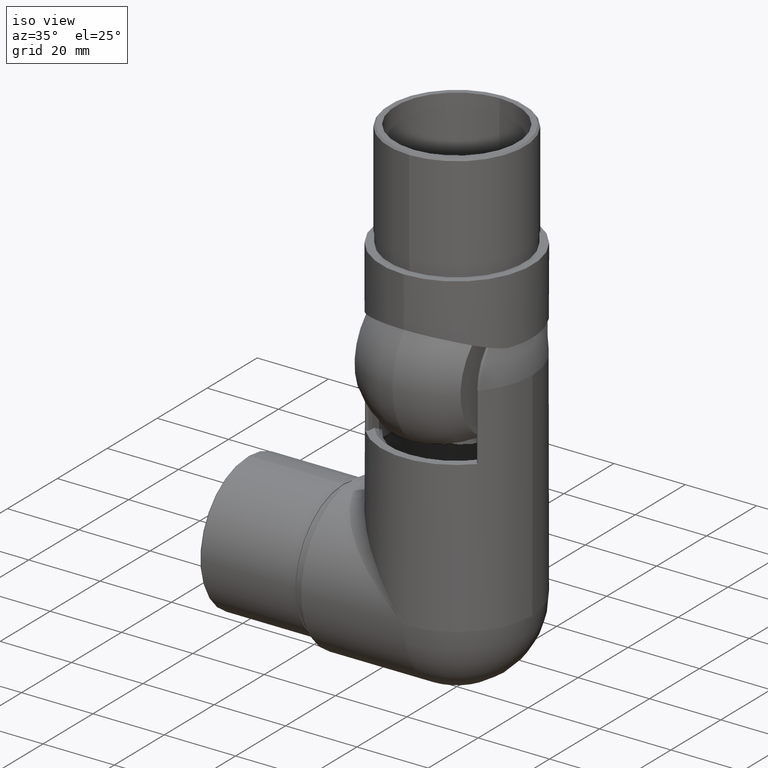
[diagram: clean part render]
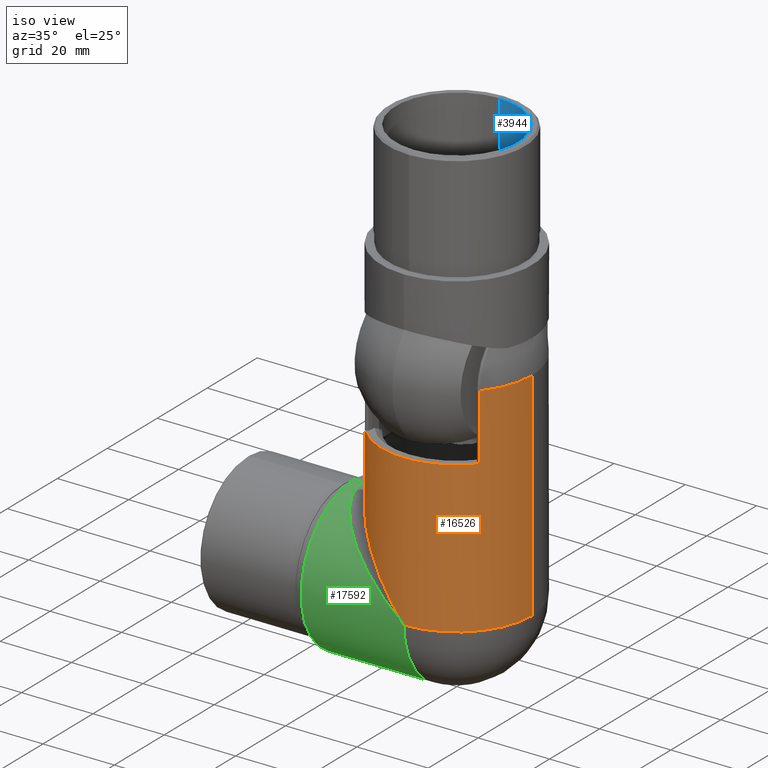
[diagram: same view with three faces highlighted in distinct colors, each labeled with its STEP entity id]
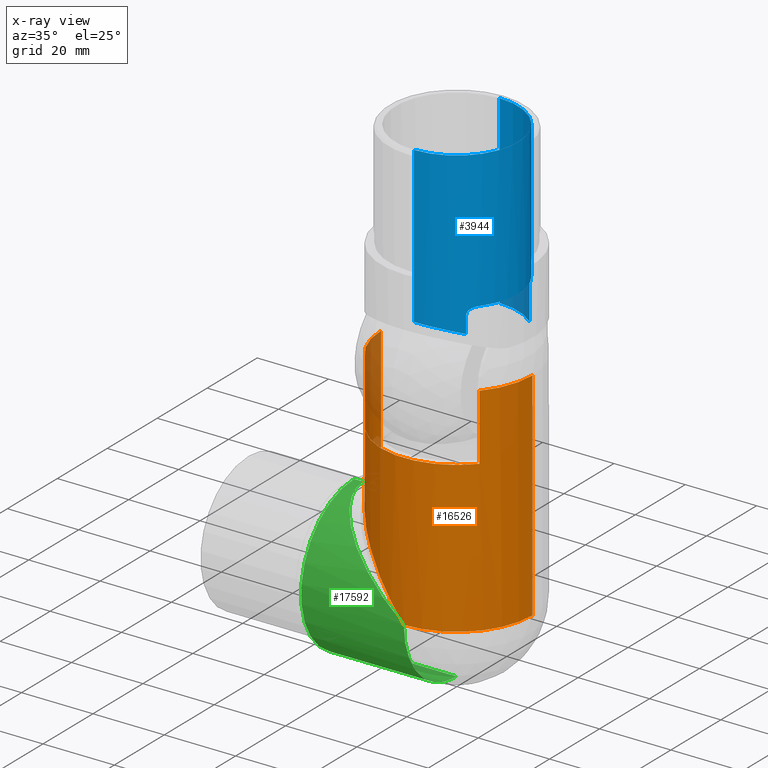
[diagram: x-ray of the same camera — body ghosted, the three highlighted faces saturated]
A machine part, iso view with three faces highlighted in distinct colors.
The next image is the same camera in x-ray (body ghosted, the three faces saturated) — at least one of them is partly hidden behind the body in this view.
Their STEP definitions:

[orange] entity #16526 — the highlighted cylindrical surface (partial cylindrical patch) has radius 21.2 mm, axis along (0, 0, -1).
#15 = CARTESIAN_POINT ( 'NONE',  ( 16.05596077515906828, -13.84363115611482442, 60.80000000000005400 ) ) ;
#73 = DIRECTION ( 'NONE',  ( 3.491481338843133355E-15, 0.000000000000000000, -1.000000000000000000 ) ) ;
#186 = CARTESIAN_POINT ( 'NONE',  ( 16.05596077515907538, -13.84363115611482975, 42.30000000000000426 ) ) ;
#228 = ORIENTED_EDGE ( 'NONE', *, *, #21409, .T. ) ;
#387 = EDGE_LOOP ( 'NONE', ( #22101, #2520, #17065, #15325, #7962, #18057, #228, #8061, #21703 ) ) ;
#399 = CARTESIAN_POINT ( 'NONE',  ( -12.41867247769038585, -21.19999999999999218, 15.34760466582491212 ) ) ;
#1328 = CYLINDRICAL_SURFACE ( 'NONE', #13012, 21.19999999999999929 ) ;
#1904 = VECTOR ( 'NONE', #6328, 1000.000000000000000 ) ;
#1930 = CARTESIAN_POINT ( 'NONE',  ( 21.19999999999999218, 2.596251214192388375E-15, 60.80000000000007532 ) ) ;
#1986 = CARTESIAN_POINT ( 'NONE',  ( 16.05596077515907538, -13.84363115611482975, 51.29999999999999716 ) ) ;
#2443 = LINE ( 'NONE', #6258, #1904 ) ;
#2520 = ORIENTED_EDGE ( 'NONE', *, *, #9721, .T. ) ;
#2555 = CIRCLE ( 'NONE', #19419, 21.19999999999999929 ) ;
#3300 = CARTESIAN_POINT ( 'NONE',  ( 0.000000000000000000, 0.000000000000000000, 42.30000000000000426 ) ) ;
#3507 = AXIS2_PLACEMENT_3D ( 'NONE', #16790, #13229, #4563 ) ;
#4563 = DIRECTION ( 'NONE',  ( 1.000000000000000000, 0.000000000000000000, 3.600369478442430295E-15 ) ) ;
#4929 = AXIS2_PLACEMENT_3D ( 'NONE', #18751, #15406, #10201 ) ;
#5185 =( BOUNDED_CURVE ( )  B_SPLINE_CURVE ( 3, ( #6122, #18056, #399, #19200 ),
 .UNSPECIFIED., .F., .T. ) 
 B_SPLINE_CURVE_WITH_KNOTS ( ( 4, 4 ),
 ( 3.141592653589793116, 4.712388980384689674 ),
 .UNSPECIFIED. ) 
 CURVE ( )  GEOMETRIC_REPRESENTATION_ITEM ( )  RATIONAL_B_SPLINE_CURVE ( ( 1.000000000000000000, 0.8047378541243649375, 0.8047378541243649375, 1.000000000000000000 ) ) 
 REPRESENTATION_ITEM ( '' )  );
#5201 = EDGE_CURVE ( 'NONE', #20519, #10269, #10367, .T. ) ;
#5623 = VERTEX_POINT ( 'NONE', #8094 ) ;
#5645 = EDGE_CURVE ( 'NONE', #9509, #6820, #7201, .T. ) ;
#5779 = EDGE_CURVE ( 'NONE', #9643, #15907, #21373, .T. ) ;
#6122 = CARTESIAN_POINT ( 'NONE',  ( -21.19999999999999929, 0.000000000000000000, 26.19999999999999929 ) ) ;
#6258 = CARTESIAN_POINT ( 'NONE',  ( -16.05596077515907538, -13.84363115611482975, 51.29999999999999716 ) ) ;
#6328 = DIRECTION ( 'NONE',  ( -0.000000000000000000, -0.000000000000000000, 1.000000000000000000 ) ) ;
#6820 = VERTEX_POINT ( 'NONE', #11552 ) ;
#7068 = DIRECTION ( 'NONE',  ( 0.000000000000000000, 0.000000000000000000, -1.000000000000000000 ) ) ;
#7201 = CIRCLE ( 'NONE', #3507, 21.19999999999999929 ) ;
#7962 = ORIENTED_EDGE ( 'NONE', *, *, #19383, .T. ) ;
#8052 = DIRECTION ( 'NONE',  ( -0.000000000000000000, -0.000000000000000000, 1.000000000000000000 ) ) ;
#8061 = ORIENTED_EDGE ( 'NONE', *, *, #9672, .T. ) ;
#8094 = CARTESIAN_POINT ( 'NONE',  ( -3.894376821288582760E-15, -21.19999999999999929, -1.359714399795232588E-29 ) ) ;
#8115 = CARTESIAN_POINT ( 'NONE',  ( -16.05596077515907538, -13.84363115611482975, 42.30000000000000426 ) ) ;
#8442 = CARTESIAN_POINT ( 'NONE',  ( -21.19999999999999929, 0.000000000000000000, 51.29999999999999716 ) ) ;
#8743 = DIRECTION ( 'NONE',  ( 1.000000000000000000, 0.000000000000000000, 3.600369478442430295E-15 ) ) ;
#9509 = VERTEX_POINT ( 'NONE', #11011 ) ;
#9630 = CARTESIAN_POINT ( 'NONE',  ( 0.000000000000000000, 0.000000000000000000, 51.29999999999999716 ) ) ;
#9643 = VERTEX_POINT ( 'NONE', #1930 ) ;
#9672 = EDGE_CURVE ( 'NONE', #22133, #5623, #5185, .T. ) ;
#9721 = EDGE_CURVE ( 'NONE', #9643, #15759, #2555, .T. ) ;
#9796 = EDGE_CURVE ( 'NONE', #15759, #10269, #19102, .T. ) ;
#10132 = VECTOR ( 'NONE', #17069, 1000.000000000000000 ) ;
#10201 = DIRECTION ( 'NONE',  ( 1.000000000000000000, 0.000000000000000000, 3.491481338843133355E-15 ) ) ;
#10269 = VERTEX_POINT ( 'NONE', #186 ) ;
#10321 = DIRECTION ( 'NONE',  ( 0.000000000000000000, 0.000000000000000000, -1.000000000000000000 ) ) ;
#10367 = CIRCLE ( 'NONE', #19349, 21.19999999999999929 ) ;
#10461 = CARTESIAN_POINT ( 'NONE',  ( -6.938893903907228378E-15, 0.000000000000000000, 60.79999999999999716 ) ) ;
#11011 = CARTESIAN_POINT ( 'NONE',  ( -16.05596077515904341, -13.84363115611484218, 60.80000000000001137 ) ) ;
#11552 = CARTESIAN_POINT ( 'NONE',  ( -21.20000000000000284, 0.000000000000000000, 60.79999999999992610 ) ) ;
#13012 = AXIS2_PLACEMENT_3D ( 'NONE', #9630, #19818, #18043 ) ;
#13229 = DIRECTION ( 'NONE',  ( 3.491481338843133355E-15, 0.000000000000000000, -1.000000000000000000 ) ) ;
#14057 = CARTESIAN_POINT ( 'NONE',  ( 21.19999999999999929, 2.596251214192388770E-15, 51.29999999999999716 ) ) ;
#14968 = FACE_OUTER_BOUND ( 'NONE', #387, .T. ) ;
#15265 = LINE ( 'NONE', #8442, #10132 ) ;
#15325 = ORIENTED_EDGE ( 'NONE', *, *, #5201, .F. ) ;
#15406 = DIRECTION ( 'NONE',  ( 3.491481338843133355E-15, 0.000000000000000000, -1.000000000000000000 ) ) ;
#15759 = VERTEX_POINT ( 'NONE', #15 ) ;
#15907 = VERTEX_POINT ( 'NONE', #18756 ) ;
#16526 = ADVANCED_FACE ( 'NONE', ( #14968 ), #1328, .T. ) ;
#16790 = CARTESIAN_POINT ( 'NONE',  ( -6.938893903907228378E-15, 0.000000000000000000, 60.79999999999999716 ) ) ;
#16835 = VECTOR ( 'NONE', #7068, 1000.000000000000000 ) ;
#17065 = ORIENTED_EDGE ( 'NONE', *, *, #9796, .T. ) ;
#17069 = DIRECTION ( 'NONE',  ( 0.000000000000000000, 0.000000000000000000, -1.000000000000000000 ) ) ;
#17193 = EDGE_CURVE ( 'NONE', #15907, #5623, #21112, .T. ) ;
#17516 = VECTOR ( 'NONE', #10321, 1000.000000000000000 ) ;
#18043 = DIRECTION ( 'NONE',  ( -1.000000000000000000, 0.000000000000000000, 0.000000000000000000 ) ) ;
#18056 = CARTESIAN_POINT ( 'NONE',  ( -21.19999999999999218, -12.41867247769037697, 26.20000000000000284 ) ) ;
#18057 = ORIENTED_EDGE ( 'NONE', *, *, #5645, .T. ) ;
#18751 = CARTESIAN_POINT ( 'NONE',  ( 0.000000000000000000, 0.000000000000000000, 0.000000000000000000 ) ) ;
#18756 = CARTESIAN_POINT ( 'NONE',  ( 21.19999999999999929, 2.596251214192388770E-15, 7.401940438347442713E-14 ) ) ;
#19102 = LINE ( 'NONE', #1986, #17516 ) ;
#19200 = CARTESIAN_POINT ( 'NONE',  ( -3.894376821288582760E-15, -21.19999999999999929, -1.359714399795232588E-29 ) ) ;
#19259 = CARTESIAN_POINT ( 'NONE',  ( -21.19999999999999929, 0.000000000000000000, 26.19999999999999929 ) ) ;
#19349 = AXIS2_PLACEMENT_3D ( 'NONE', #3300, #8052, #20083 ) ;
#19383 = EDGE_CURVE ( 'NONE', #20519, #9509, #2443, .T. ) ;
#19419 = AXIS2_PLACEMENT_3D ( 'NONE', #10461, #73, #8743 ) ;
#19818 = DIRECTION ( 'NONE',  ( 0.000000000000000000, 0.000000000000000000, -1.000000000000000000 ) ) ;
#20083 = DIRECTION ( 'NONE',  ( -1.000000000000000000, 0.000000000000000000, 0.000000000000000000 ) ) ;
#20519 = VERTEX_POINT ( 'NONE', #8115 ) ;
#21112 = CIRCLE ( 'NONE', #4929, 21.19999999999999929 ) ;
#21373 = LINE ( 'NONE', #14057, #16835 ) ;
#21409 = EDGE_CURVE ( 'NONE', #6820, #22133, #15265, .T. ) ;
#21703 = ORIENTED_EDGE ( 'NONE', *, *, #17193, .F. ) ;
#22101 = ORIENTED_EDGE ( 'NONE', *, *, #5779, .F. ) ;
#22133 = VERTEX_POINT ( 'NONE', #19259 ) ;

[blue] entity #3944 — the highlighted cylindrical surface (partial cylindrical patch) has radius 17.15 mm, axis along (0, 0, -1).
#100 = CARTESIAN_POINT ( 'NONE',  ( -11.54554003942277163, 40.15804666059585060, -12.68174724493276351 ) ) ;
#297 = DIRECTION ( 'NONE',  ( 0.000000000000000000, 0.000000000000000000, 1.000000000000000000 ) ) ;
#379 = VERTEX_POINT ( 'NONE', #15708 ) ;
#409 = ORIENTED_EDGE ( 'NONE', *, *, #18970, .F. ) ;
#470 = VERTEX_POINT ( 'NONE', #8934 ) ;
#672 = CIRCLE ( 'NONE', #5281, 17.14999999999999858 ) ;
#901 = CARTESIAN_POINT ( 'NONE',  ( -11.44432058427829446, 45.26596137511018014, 12.77301946934490751 ) ) ;
#1106 = DIRECTION ( 'NONE',  ( 0.000000000000000000, -1.000000000000000000, 0.000000000000000000 ) ) ;
#1354 = VECTOR ( 'NONE', #2237, 1000.000000000000000 ) ;
#1417 = CARTESIAN_POINT ( 'NONE',  ( -11.52182662538698921, 27.00000000000000000, 12.70314965725128431 ) ) ;
#1848 = AXIS2_PLACEMENT_3D ( 'NONE', #20336, #20478, #8283 ) ;
#2237 = DIRECTION ( 'NONE',  ( 0.000000000000000000, -1.000000000000000000, 0.000000000000000000 ) ) ;
#2340 = CIRCLE ( 'NONE', #3811, 17.14999999999999858 ) ;
#2459 = ORIENTED_EDGE ( 'NONE', *, *, #7205, .T. ) ;
#2679 = CYLINDRICAL_SURFACE ( 'NONE', #10191, 17.14999999999999858 ) ;
#2899 = ORIENTED_EDGE ( 'NONE', *, *, #10011, .T. ) ;
#2979 = CARTESIAN_POINT ( 'NONE',  ( -11.93406696236007392, 39.27660967722525243, 12.31853811027894352 ) ) ;
#3137 = CARTESIAN_POINT ( 'NONE',  ( -11.44432058427829446, 45.26596137511018014, 12.77301946934490751 ) ) ;
#3224 = CARTESIAN_POINT ( 'NONE',  ( -2.118018479522421504, 43.64122178005570163, 17.02702435909911927 ) ) ;
#3262 = CARTESIAN_POINT ( 'NONE',  ( -13.64566563467491811, 38.50000000000000000, 10.38837376044257965 ) ) ;
#3371 = VECTOR ( 'NONE', #9279, 1000.000000000000000 ) ;
#3390 = CARTESIAN_POINT ( 'NONE',  ( -12.56297984996234263, 38.77548015497443856, -11.67563508306215425 ) ) ;
#3446 = CARTESIAN_POINT ( 'NONE',  ( -5.195928836077006174, 43.87569344182024622, 16.37765921568134075 ) ) ;
#3512 = EDGE_CURVE ( 'NONE', #19740, #14024, #12271, .T. ) ;
#3532 = CARTESIAN_POINT ( 'NONE',  ( -12.89329481203413863, 38.62655785181662793, -11.30989759224232394 ) ) ;
#3642 = EDGE_LOOP ( 'NONE', ( #2459, #5982, #15737, #16615, #17563, #17863, #2899, #21401, #19144, #10915, #13766, #409 ) ) ;
#3811 = AXIS2_PLACEMENT_3D ( 'NONE', #12825, #1106, #6053 ) ;
#3815 = B_SPLINE_CURVE_WITH_KNOTS ( 'NONE', 3,
 ( #22121, #11981, #16974, #20321, #15179, #18597, #20535, #3446, #8269, #16907, #3224, #15405, #21973, #6883 ),
 .UNSPECIFIED., .F., .F.,
 ( 4, 2, 2, 2, 2, 2, 4 ),
 ( 0.000000000000000000, 0.003153585067727678916, 0.004730377601591517940, 0.006307170135455357832, 0.009460755203183042819, 0.01103754773704688705, 0.01261434027091072954 ),
 .UNSPECIFIED. ) ;
#3944 = ADVANCED_FACE ( 'NONE', ( #12538 ), #2679, .F. ) ;
#3962 = B_SPLINE_CURVE_WITH_KNOTS ( 'NONE', 3,
 ( #7664, #8254, #16288, #21957 ),
 .UNSPECIFIED., .F., .F.,
 ( 4, 4 ),
 ( 0.000000000000000000, 5.544259947314159357E-05 ),
 .UNSPECIFIED. ) ;
#4277 = CARTESIAN_POINT ( 'NONE',  ( -11.52182662538699098, 40.32596970603830755, 12.70314965725128253 ) ) ;
#4577 = CARTESIAN_POINT ( 'NONE',  ( -11.52182662538698921, 40.50000000000000000, 12.70314965725128253 ) ) ;
#4667 = VECTOR ( 'NONE', #19786, 1000.000000000000000 ) ;
#4714 = VERTEX_POINT ( 'NONE', #12190 ) ;
#4867 = CARTESIAN_POINT ( 'NONE',  ( -13.43727001175111901, 38.49999999999999289, 10.66211217761200913 ) ) ;
#4973 = CARTESIAN_POINT ( 'NONE',  ( -13.22256024203132974, 38.52812641979010522, -10.92701877338890171 ) ) ;
#5112 = CARTESIAN_POINT ( 'NONE',  ( -12.13624709277711489, 39.07054802504602975, -12.12136836374315862 ) ) ;
#5211 = CARTESIAN_POINT ( 'NONE',  ( -11.52182662538698921, 51.91171400756047660, -12.70314965725128431 ) ) ;
#5281 = AXIS2_PLACEMENT_3D ( 'NONE', #11335, #21625, #9631 ) ;
#5778 = B_SPLINE_CURVE_WITH_KNOTS ( 'NONE', 3,
 ( #19872, #15192, #4973, #3532, #11857, #3390, #16923, #5112, #10275, #22062, #13659, #100, #8927, #10420 ),
 .UNSPECIFIED., .F., .F.,
 ( 4, 2, 2, 2, 2, 2, 4 ),
 ( 0.000000000000000000, 0.001025428900417195551, 0.001538143350625795170, 0.002050857800834394572, 0.003076286701251597713, 0.003589001151460206873, 0.004101715601668816900 ),
 .UNSPECIFIED. ) ;
#5786 = CARTESIAN_POINT ( 'NONE',  ( 2.100269260537710710E-15, 27.00000000000000000, -17.14999999999999858 ) ) ;
#5982 = ORIENTED_EDGE ( 'NONE', *, *, #12793, .T. ) ;
#6053 = DIRECTION ( 'NONE',  ( 0.000000000000000000, 0.000000000000000000, -1.000000000000000000 ) ) ;
#6060 = CARTESIAN_POINT ( 'NONE',  ( -11.47051993821461480, 45.27553706163566716, 12.74954547353147838 ) ) ;
#6427 = CARTESIAN_POINT ( 'NONE',  ( -12.56162201624609054, 38.76175833430719564, 11.67996617704096529 ) ) ;
#6464 = VERTEX_POINT ( 'NONE', #13388 ) ;
#6497 = CARTESIAN_POINT ( 'NONE',  ( -12.13737007168315074, 39.06954657178945922, 12.12023949098654008 ) ) ;
#6660 = CARTESIAN_POINT ( 'NONE',  ( -11.54644505774033370, 40.15377452035768613, 12.68092272747949778 ) ) ;
#6883 = CARTESIAN_POINT ( 'NONE',  ( -1.544997085636608856E-11, 43.59715103369886435, 17.14999999999999858 ) ) ;
#6916 = EDGE_CURVE ( 'NONE', #4714, #14872, #14878, .T. ) ;
#7205 = EDGE_CURVE ( 'NONE', #6464, #7684, #2340, .T. ) ;
#7243 = VECTOR ( 'NONE', #20330, 1000.000000000000000 ) ;
#7664 = CARTESIAN_POINT ( 'NONE',  ( -11.48081395348836509, 51.90758668506475715, -12.74022805782481704 ) ) ;
#7684 = VERTEX_POINT ( 'NONE', #15142 ) ;
#8180 = CARTESIAN_POINT ( 'NONE',  ( -13.64566563467491811, 38.50000000000000000, 10.38837376044257965 ) ) ;
#8190 = EDGE_CURVE ( 'NONE', #379, #14024, #5778, .T. ) ;
#8254 = CARTESIAN_POINT ( 'NONE',  ( -11.49454284292286310, 51.90758668506475715, -12.72785631497452918 ) ) ;
#8269 = CARTESIAN_POINT ( 'NONE',  ( -4.189700940679774277, 43.77220635212900390, 16.66350584231024357 ) ) ;
#8283 = DIRECTION ( 'NONE',  ( 0.000000000000000000, 0.000000000000000000, 1.000000000000000000 ) ) ;
#8376 = EDGE_CURVE ( 'NONE', #19125, #14472, #17637, .T. ) ;
#8431 = CARTESIAN_POINT ( 'NONE',  ( -11.52182662538698921, 40.50000000000000000, -12.70314965725128253 ) ) ;
#8573 = CARTESIAN_POINT ( 'NONE',  ( -11.52182662538698921, 27.00000000000000000, -12.70314965725128431 ) ) ;
#8744 = CARTESIAN_POINT ( 'NONE',  ( -11.52182662538698921, 45.29872077890105686, 12.70314965725128431 ) ) ;
#8927 = CARTESIAN_POINT ( 'NONE',  ( -11.52182662538699454, 40.32591681697685715, -12.70314965725128786 ) ) ;
#8934 = CARTESIAN_POINT ( 'NONE',  ( 2.100269260537710710E-15, 51.90758668506475715, -17.14999999999999858 ) ) ;
#9279 = DIRECTION ( 'NONE',  ( -0.000000000000000000, 1.000000000000000000, -0.000000000000000000 ) ) ;
#9631 = DIRECTION ( 'NONE',  ( 0.000000000000000000, 0.000000000000000000, -1.000000000000000000 ) ) ;
#10011 = EDGE_CURVE ( 'NONE', #379, #14872, #672, .T. ) ;
#10191 = AXIS2_PLACEMENT_3D ( 'NONE', #20730, #15472, #297 ) ;
#10275 = CARTESIAN_POINT ( 'NONE',  ( -11.93283714132718565, 39.27795889737807755, -12.31972921839912516 ) ) ;
#10420 = CARTESIAN_POINT ( 'NONE',  ( -11.52182662538698921, 40.50000000000000000, -12.70314965725128253 ) ) ;
#10485 = VERTEX_POINT ( 'NONE', #20159 ) ;
#10915 = ORIENTED_EDGE ( 'NONE', *, *, #8376, .T. ) ;
#11335 = CARTESIAN_POINT ( 'NONE',  ( 0.000000000000000000, 38.50000000000000000, 0.000000000000000000 ) ) ;
#11750 = LINE ( 'NONE', #1417, #7243 ) ;
#11857 = CARTESIAN_POINT ( 'NONE',  ( -12.78200812453220259, 38.66915114146597432, -11.43543552331017921 ) ) ;
#11981 = CARTESIAN_POINT ( 'NONE',  ( -10.67826061231155776, 44.98597164066460863, 13.45939092027797379 ) ) ;
#12130 = LINE ( 'NONE', #16063, #3371 ) ;
#12190 = CARTESIAN_POINT ( 'NONE',  ( -11.52182662538698921, 40.50000000000000000, 12.70314965725128253 ) ) ;
#12271 = LINE ( 'NONE', #8573, #1354 ) ;
#12538 = FACE_OUTER_BOUND ( 'NONE', #3642, .T. ) ;
#12793 = EDGE_CURVE ( 'NONE', #7684, #470, #16147, .T. ) ;
#12825 = CARTESIAN_POINT ( 'NONE',  ( 0.000000000000000000, 0.000000000000000000, 0.000000000000000000 ) ) ;
#13168 = CARTESIAN_POINT ( 'NONE',  ( -11.63604269660875801, 39.83191741980009937, 12.59875807587478569 ) ) ;
#13388 = CARTESIAN_POINT ( 'NONE',  ( 0.000000000000000000, 0.000000000000000000, 17.14999999999999858 ) ) ;
#13659 = CARTESIAN_POINT ( 'NONE',  ( -11.63530408393716087, 39.83356808599149446, -12.59944073602432724 ) ) ;
#13766 = ORIENTED_EDGE ( 'NONE', *, *, #18815, .T. ) ;
#13965 = EDGE_CURVE ( 'NONE', #10485, #470, #16651, .T. ) ;
#14024 = VERTEX_POINT ( 'NONE', #8431 ) ;
#14472 = VERTEX_POINT ( 'NONE', #3137 ) ;
#14872 = VERTEX_POINT ( 'NONE', #3262 ) ;
#14878 = B_SPLINE_CURVE_WITH_KNOTS ( 'NONE', 3,
 ( #4577, #4277, #6660, #13168, #18280, #2979, #6497, #6427, #18431, #14921, #4867, #8180 ),
 .UNSPECIFIED., .F., .F.,
 ( 4, 2, 2, 2, 2, 4 ),
 ( 0.000000000000000000, 0.0005168937930166630102, 0.001033787586033326020, 0.002067575172066652041, 0.003101362758099978061, 0.004135150344133304082 ),
 .UNSPECIFIED. ) ;
#14921 = CARTESIAN_POINT ( 'NONE',  ( -13.22203732860585568, 38.52841351598684128, 10.92757308781679981 ) ) ;
#15142 = CARTESIAN_POINT ( 'NONE',  ( 2.100269260537710710E-15, 0.000000000000000000, -17.14999999999999858 ) ) ;
#15179 = CARTESIAN_POINT ( 'NONE',  ( -8.085267249745614393, 44.33875117202522631, 15.13351672947896986 ) ) ;
#15192 = CARTESIAN_POINT ( 'NONE',  ( -13.43716204704734807, 38.50000000000000711, -10.66225399482825686 ) ) ;
#15405 = CARTESIAN_POINT ( 'NONE',  ( -1.058522231001735259, 43.60588602246866685, 17.12556835528177146 ) ) ;
#15458 = CARTESIAN_POINT ( 'NONE',  ( -1.544997085636608856E-11, 43.59715103369886435, 17.14999999999999858 ) ) ;
#15472 = DIRECTION ( 'NONE',  ( -0.000000000000000000, 1.000000000000000000, -0.000000000000000000 ) ) ;
#15708 = CARTESIAN_POINT ( 'NONE',  ( -13.64566563467491811, 38.50000000000000000, -10.38837376044258143 ) ) ;
#15737 = ORIENTED_EDGE ( 'NONE', *, *, #13965, .F. ) ;
#15853 = EDGE_CURVE ( 'NONE', #4714, #19125, #11750, .T. ) ;
#16063 = CARTESIAN_POINT ( 'NONE',  ( 0.000000000000000000, 27.00000000000000000, 17.14999999999999858 ) ) ;
#16147 = LINE ( 'NONE', #5786, #4667 ) ;
#16288 = CARTESIAN_POINT ( 'NONE',  ( -11.50829450690810773, 51.90892468164803830, -12.71542336315845390 ) ) ;
#16615 = ORIENTED_EDGE ( 'NONE', *, *, #19030, .T. ) ;
#16651 = CIRCLE ( 'NONE', #1848, 17.14999999999999858 ) ;
#16907 = CARTESIAN_POINT ( 'NONE',  ( -2.640902475417240325, 43.66758247234805168, 16.95358411509482011 ) ) ;
#16923 = CARTESIAN_POINT ( 'NONE',  ( -12.45464533150453867, 38.83927554049535757, -11.79100083932894982 ) ) ;
#16974 = CARTESIAN_POINT ( 'NONE',  ( -9.855766513450474164, 44.74522914350028913, 14.07298139084035071 ) ) ;
#17563 = ORIENTED_EDGE ( 'NONE', *, *, #3512, .T. ) ;
#17637 = B_SPLINE_CURVE_WITH_KNOTS ( 'NONE', 3,
 ( #18152, #19618, #6060, #901 ),
 .UNSPECIFIED., .F., .F.,
 ( 4, 4 ),
 ( 1.734723475976807094E-18, 0.0001093716397750075419 ),
 .UNSPECIFIED. ) ;
#17863 = ORIENTED_EDGE ( 'NONE', *, *, #8190, .F. ) ;
#18021 = VERTEX_POINT ( 'NONE', #15458 ) ;
#18152 = CARTESIAN_POINT ( 'NONE',  ( -11.52182662538698921, 45.29872077890105686, 12.70314965725128431 ) ) ;
#18280 = CARTESIAN_POINT ( 'NONE',  ( -11.70064585836730942, 39.68216311758353498, 12.53909268472781058 ) ) ;
#18431 = CARTESIAN_POINT ( 'NONE',  ( -12.78640185757626746, 38.65838262452259499, 11.43424908969517162 ) ) ;
#18597 = CARTESIAN_POINT ( 'NONE',  ( -7.150095180813207385, 44.16443951101104659, 15.59714762405423727 ) ) ;
#18815 = EDGE_CURVE ( 'NONE', #14472, #18021, #3815, .T. ) ;
#18970 = EDGE_CURVE ( 'NONE', #6464, #18021, #12130, .T. ) ;
#19030 = EDGE_CURVE ( 'NONE', #10485, #19740, #3962, .T. ) ;
#19125 = VERTEX_POINT ( 'NONE', #8744 ) ;
#19144 = ORIENTED_EDGE ( 'NONE', *, *, #15853, .T. ) ;
#19618 = CARTESIAN_POINT ( 'NONE',  ( -11.49639831288652658, 45.28644890922800670, 12.72621327658282731 ) ) ;
#19740 = VERTEX_POINT ( 'NONE', #5211 ) ;
#19786 = DIRECTION ( 'NONE',  ( -0.000000000000000000, 1.000000000000000000, -0.000000000000000000 ) ) ;
#19872 = CARTESIAN_POINT ( 'NONE',  ( -13.64566563467491811, 38.50000000000000000, -10.38837376044258143 ) ) ;
#20159 = CARTESIAN_POINT ( 'NONE',  ( -11.48081395348836509, 51.90758668506475715, -12.74022805782481704 ) ) ;
#20321 = CARTESIAN_POINT ( 'NONE',  ( -8.538404840652923156, 44.43406014155969785, 14.88233020987514443 ) ) ;
#20330 = DIRECTION ( 'NONE',  ( -0.000000000000000000, 1.000000000000000000, -0.000000000000000000 ) ) ;
#20336 = CARTESIAN_POINT ( 'NONE',  ( 0.000000000000000000, 51.90758668506475715, 0.000000000000000000 ) ) ;
#20478 = DIRECTION ( 'NONE',  ( -0.000000000000000000, -1.000000000000000000, -0.000000000000000000 ) ) ;
#20535 = CARTESIAN_POINT ( 'NONE',  ( -6.665534755466532957, 44.08514304706793752, 15.81040388122042728 ) ) ;
#20730 = CARTESIAN_POINT ( 'NONE',  ( 0.000000000000000000, 27.00000000000000000, 0.000000000000000000 ) ) ;
#21401 = ORIENTED_EDGE ( 'NONE', *, *, #6916, .F. ) ;
#21625 = DIRECTION ( 'NONE',  ( -0.000000000000000000, 1.000000000000000000, -0.000000000000000000 ) ) ;
#21957 = CARTESIAN_POINT ( 'NONE',  ( -11.52182662538698921, 51.91171400756047660, -12.70314965725128431 ) ) ;
#21973 = CARTESIAN_POINT ( 'NONE',  ( -0.5273558804034411684, 43.59715103369904909, 17.14999999999952252 ) ) ;
#22062 = CARTESIAN_POINT ( 'NONE',  ( -11.69940737030528588, 39.68471336555220574, -12.54024819322469853 ) ) ;
#22121 = CARTESIAN_POINT ( 'NONE',  ( -11.44432058427829446, 45.26596137511018014, 12.77301946934490751 ) ) ;

[green] entity #17592 — the highlighted cylindrical surface (partial cylindrical patch) has radius 21.2 mm, axis along (-1, 0, 0).
#743 = DIRECTION ( 'NONE',  ( 0.000000000000000000, 0.000000000000000000, -1.000000000000000000 ) ) ;
#1095 = DIRECTION ( 'NONE',  ( -1.000000000000000000, 0.000000000000000000, 0.000000000000000000 ) ) ;
#1565 = CIRCLE ( 'NONE', #1646, 21.19999999999999929 ) ;
#1574 = AXIS2_PLACEMENT_3D ( 'NONE', #2522, #19394, #743 ) ;
#1646 = AXIS2_PLACEMENT_3D ( 'NONE', #21932, #9942, #13225 ) ;
#2085 = CARTESIAN_POINT ( 'NONE',  ( -26.20000000000000284, 0.000000000000000000, 21.19999999999999929 ) ) ;
#2522 = CARTESIAN_POINT ( 'NONE',  ( 0.000000000000000000, 0.000000000000000000, 0.000000000000000000 ) ) ;
#2542 = ORIENTED_EDGE ( 'NONE', *, *, #3271, .T. ) ;
#3271 = EDGE_CURVE ( 'NONE', #5623, #11945, #9377, .T. ) ;
#3880 = CARTESIAN_POINT ( 'NONE',  ( -15.34760466582490324, -21.19999999999999218, 12.41867247769037519 ) ) ;
#4030 = CARTESIAN_POINT ( 'NONE',  ( -3.894376821288582760E-15, -21.19999999999999929, -1.359714399795232588E-29 ) ) ;
#5623 = VERTEX_POINT ( 'NONE', #8094 ) ;
#5837 = VECTOR ( 'NONE', #1095, 1000.000000000000000 ) ;
#6268 = EDGE_CURVE ( 'NONE', #18823, #17368, #1565, .T. ) ;
#6316 = ORIENTED_EDGE ( 'NONE', *, *, #6268, .F. ) ;
#6829 = VERTEX_POINT ( 'NONE', #8365 ) ;
#7378 = CARTESIAN_POINT ( 'NONE',  ( -26.20000000000000284, 0.000000000000000000, 21.19999999999999929 ) ) ;
#7635 = EDGE_LOOP ( 'NONE', ( #10057, #12844, #2542, #9780, #6316 ) ) ;
#7943 = EDGE_CURVE ( 'NONE', #11945, #17368, #8193, .T. ) ;
#8094 = CARTESIAN_POINT ( 'NONE',  ( -3.894376821288582760E-15, -21.19999999999999929, -1.359714399795232588E-29 ) ) ;
#8193 = LINE ( 'NONE', #9496, #5837 ) ;
#8365 = CARTESIAN_POINT ( 'NONE',  ( 0.000000000000000000, 2.596251214192388375E-15, -21.19999999999999929 ) ) ;
#9377 =( BOUNDED_CURVE ( )  B_SPLINE_CURVE ( 3, ( #4030, #3880, #13997, #7378 ),
 .UNSPECIFIED., .F., .T. ) 
 B_SPLINE_CURVE_WITH_KNOTS ( ( 4, 4 ),
 ( 1.570796326794896780, 3.141592653589793116 ),
 .UNSPECIFIED. ) 
 CURVE ( )  GEOMETRIC_REPRESENTATION_ITEM ( )  RATIONAL_B_SPLINE_CURVE ( ( 1.000000000000000000, 0.8047378541243650485, 0.8047378541243650485, 1.000000000000000000 ) ) 
 REPRESENTATION_ITEM ( '' )  );
#9496 = CARTESIAN_POINT ( 'NONE',  ( 23.41999999999999815, 0.000000000000000000, 21.19999999999999929 ) ) ;
#9780 = ORIENTED_EDGE ( 'NONE', *, *, #7943, .T. ) ;
#9846 = LINE ( 'NONE', #10577, #10912 ) ;
#9942 = DIRECTION ( 'NONE',  ( -1.000000000000000000, 0.000000000000000000, -6.123233995736766036E-17 ) ) ;
#10057 = ORIENTED_EDGE ( 'NONE', *, *, #21665, .F. ) ;
#10060 = CARTESIAN_POINT ( 'NONE',  ( -28.79999999999999361, 2.596251214192388375E-15, -21.19999999999999929 ) ) ;
#10577 = CARTESIAN_POINT ( 'NONE',  ( 23.41999999999999815, 2.596251214192388375E-15, -21.19999999999999929 ) ) ;
#10912 = VECTOR ( 'NONE', #16016, 1000.000000000000000 ) ;
#11945 = VERTEX_POINT ( 'NONE', #2085 ) ;
#11975 = EDGE_CURVE ( 'NONE', #6829, #5623, #14265, .T. ) ;
#12844 = ORIENTED_EDGE ( 'NONE', *, *, #11975, .T. ) ;
#13161 = DIRECTION ( 'NONE',  ( -1.000000000000000000, 0.000000000000000000, 0.000000000000000000 ) ) ;
#13225 = DIRECTION ( 'NONE',  ( 0.000000000000000000, 0.000000000000000000, 1.000000000000000000 ) ) ;
#13997 = CARTESIAN_POINT ( 'NONE',  ( -26.19999999999999218, -12.41867247769038052, 21.19999999999999218 ) ) ;
#14265 = CIRCLE ( 'NONE', #1574, 21.19999999999999929 ) ;
#15693 = CARTESIAN_POINT ( 'NONE',  ( -28.79999999999999361, 0.000000000000000000, 21.19999999999999929 ) ) ;
#16016 = DIRECTION ( 'NONE',  ( -1.000000000000000000, 0.000000000000000000, 0.000000000000000000 ) ) ;
#16717 = DIRECTION ( 'NONE',  ( 0.000000000000000000, 0.000000000000000000, 1.000000000000000000 ) ) ;
#17352 = FACE_OUTER_BOUND ( 'NONE', #7635, .T. ) ;
#17368 = VERTEX_POINT ( 'NONE', #15693 ) ;
#17592 = ADVANCED_FACE ( 'NONE', ( #17352 ), #20011, .T. ) ;
#18823 = VERTEX_POINT ( 'NONE', #10060 ) ;
#19394 = DIRECTION ( 'NONE',  ( -1.000000000000000000, -0.000000000000000000, -0.000000000000000000 ) ) ;
#19774 = AXIS2_PLACEMENT_3D ( 'NONE', #19908, #13161, #16717 ) ;
#19908 = CARTESIAN_POINT ( 'NONE',  ( 23.41999999999999815, 0.000000000000000000, 0.000000000000000000 ) ) ;
#20011 = CYLINDRICAL_SURFACE ( 'NONE', #19774, 21.19999999999999929 ) ;
#21665 = EDGE_CURVE ( 'NONE', #6829, #18823, #9846, .T. ) ;
#21932 = CARTESIAN_POINT ( 'NONE',  ( -28.79999999999999361, 0.000000000000000000, 0.000000000000000000 ) ) ;